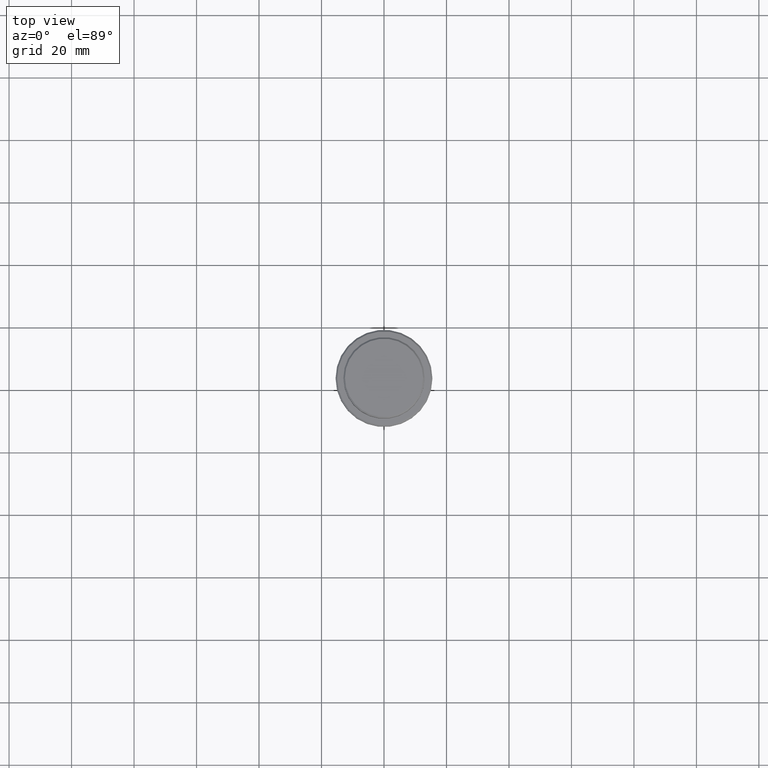
[diagram: clean part render]
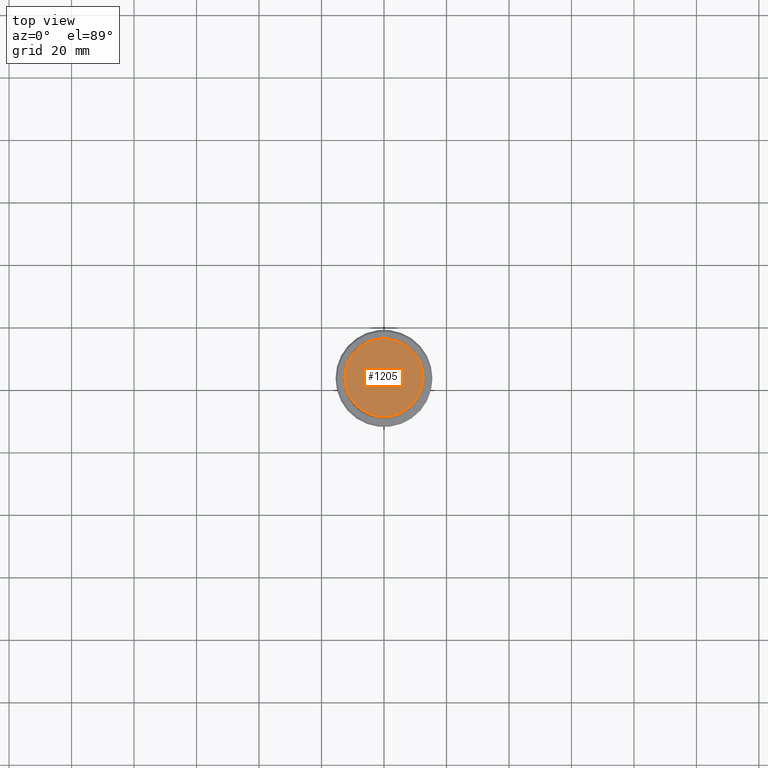
[diagram: same view with one face highlighted and labeled with its STEP entity id]
A machine part, top view. The second image highlights one B-rep face of the part: STEP entity #1205.
In plain terms, the highlighted planar face has unit normal (0, -0, 1).
Its self-contained STEP definition (entity closure, byte-faithful):
#162 = ORIENTED_EDGE ( 'NONE', *, *, #1176, .T. ) ;
#247 = CIRCLE ( 'NONE', #1141, 12.50000000000006750 ) ;
#322 = DIRECTION ( 'NONE',  ( 1.000000000000000000, 0.000000000000000000, 0.000000000000000000 ) ) ;
#398 = DIRECTION ( 'NONE',  ( 0.000000000000000000, -0.000000000000000000, 1.000000000000000000 ) ) ;
#433 = FACE_OUTER_BOUND ( 'NONE', #1148, .T. ) ;
#517 = DIRECTION ( 'NONE',  ( 1.000000000000000000, 0.000000000000000000, 0.000000000000000000 ) ) ;
#527 = AXIS2_PLACEMENT_3D ( 'NONE', #965, #1319, #517 ) ;
#601 = CARTESIAN_POINT ( 'NONE',  ( -12.50000000000006750, 0.000000000000000000, 0.000000000000000000 ) ) ;
#620 = CARTESIAN_POINT ( 'NONE',  ( 0.000000000000000000, 0.000000000000000000, 0.000000000000000000 ) ) ;
#831 = ORIENTED_EDGE ( 'NONE', *, *, #1122, .T. ) ;
#843 = PLANE ( 'NONE',  #1277 ) ;
#876 = CARTESIAN_POINT ( 'NONE',  ( 0.000000000000000000, 0.000000000000000000, 0.000000000000000000 ) ) ;
#948 = CIRCLE ( 'NONE', #527, 12.50000000000006750 ) ;
#950 = VERTEX_POINT ( 'NONE', #601 ) ;
#965 = CARTESIAN_POINT ( 'NONE',  ( 0.000000000000000000, 0.000000000000000000, 0.000000000000000000 ) ) ;
#1122 = EDGE_CURVE ( 'NONE', #1358, #950, #948, .T. ) ;
#1141 = AXIS2_PLACEMENT_3D ( 'NONE', #876, #1393, #322 ) ;
#1148 = EDGE_LOOP ( 'NONE', ( #162, #831 ) ) ;
#1176 = EDGE_CURVE ( 'NONE', #950, #1358, #247, .T. ) ;
#1205 = ADVANCED_FACE ( 'NONE', ( #433 ), #843, .T. ) ;
#1277 = AXIS2_PLACEMENT_3D ( 'NONE', #620, #398, #1288 ) ;
#1288 = DIRECTION ( 'NONE',  ( 1.000000000000000000, 0.000000000000000000, 0.000000000000000000 ) ) ;
#1319 = DIRECTION ( 'NONE',  ( -0.000000000000000000, -0.000000000000000000, 1.000000000000000000 ) ) ;
#1347 = CARTESIAN_POINT ( 'NONE',  ( 12.50000000000006750, 1.561424668912879450E-15, 0.000000000000000000 ) ) ;
#1358 = VERTEX_POINT ( 'NONE', #1347 ) ;
#1393 = DIRECTION ( 'NONE',  ( -0.000000000000000000, -0.000000000000000000, 1.000000000000000000 ) ) ;